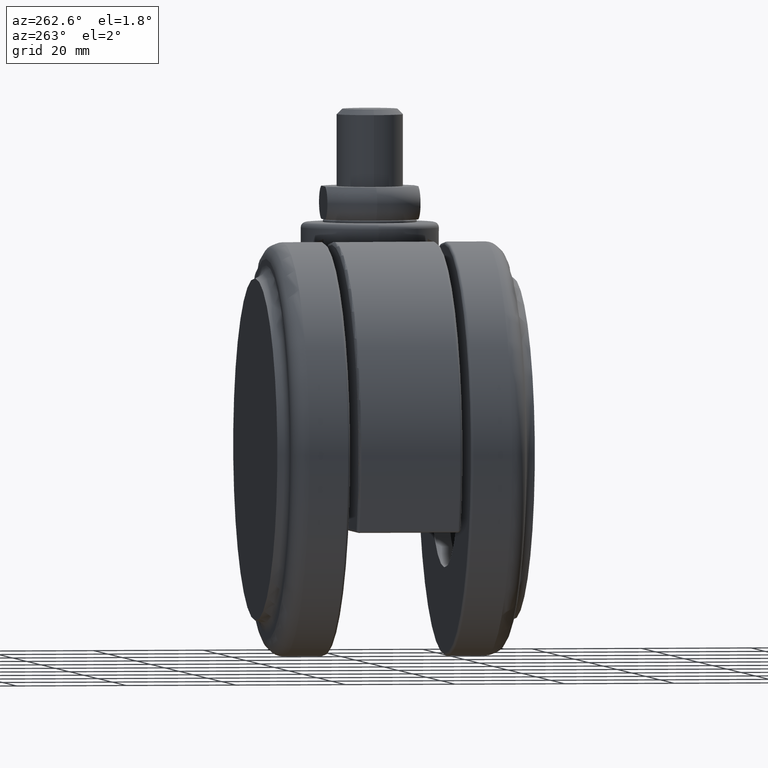
[diagram: clean part render]
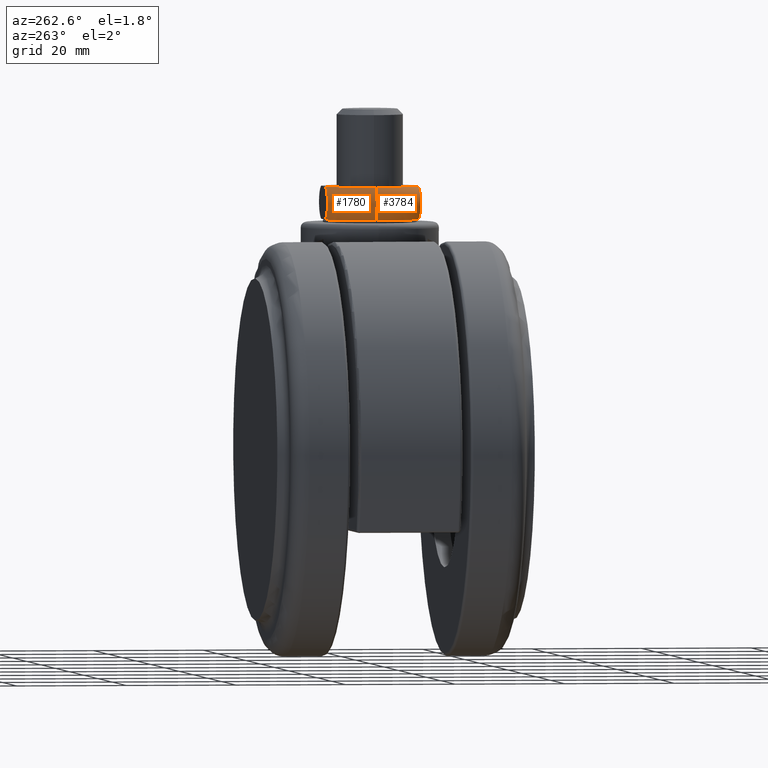
[diagram: same view with one multi-face feature highlighted, each face labeled with its STEP entity id]
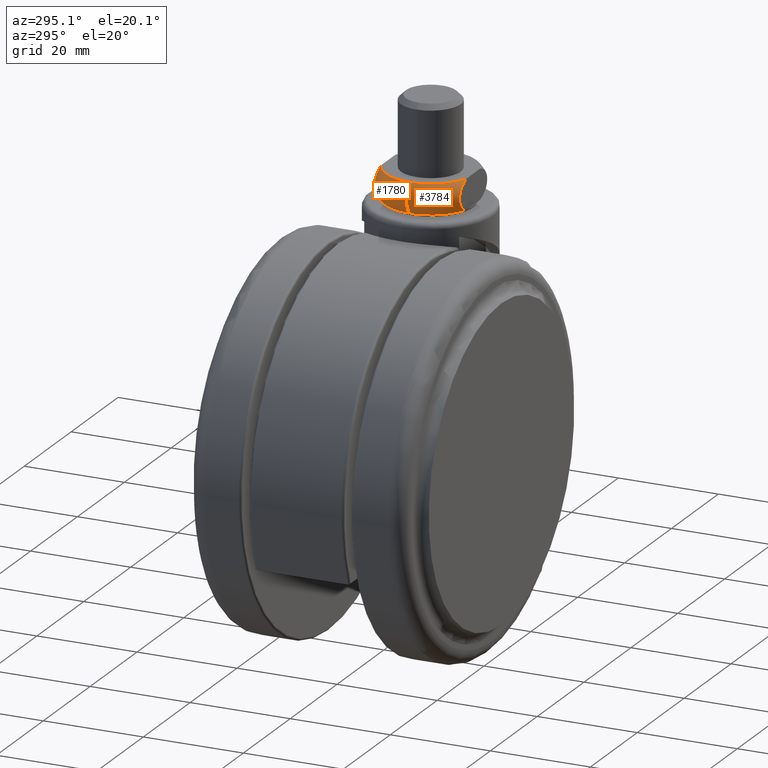
[diagram: same view with one multi-face feature highlighted, each face labeled with its STEP entity id]
A machine part, auxiliary view. The highlighted faces form ONE feature: a constant-radius fillet chain: 2 tangent blend faces with common blend radius 4 mm. The faces share edges in the B-rep.
A second angle (auxiliary view) of the same feature is appended — it is thin or edge-on in the first view.
Their STEP definitions:
[1] entity #1780 (Torus):
#21 = DIRECTION ( 'NONE',  ( -0.0000000000000000000, -1.000000000000000000, -0.0000000000000000000 ) ) ;
#95 = DIRECTION ( 'NONE',  ( 0.0000000000000000000, 0.0000000000000000000, -1.000000000000000000 ) ) ;
#110 = VERTEX_POINT ( 'NONE', #1321 ) ;
#129 = DIRECTION ( 'NONE',  ( -1.000000000000000000, 0.0000000000000000000, 0.0000000000000000000 ) ) ;
#193 = CARTESIAN_POINT ( 'NONE',  ( -4.341128550164994800, 8.500000000000000000, 5.929423039183675700 ) ) ;
#266 = EDGE_CURVE ( 'NONE', #1863, #811, #3368, .T. ) ;
#312 = CARTESIAN_POINT ( 'NONE',  ( -2.958037795423370300, 8.500000000000000000, 0.4999999999998860400 ) ) ;
#348 = CARTESIAN_POINT ( 'NONE',  ( -5.797492333863989000, 8.500000000000001800, 4.243799523248272400 ) ) ;
#363 = CARTESIAN_POINT ( 'NONE',  ( -5.455660565578008400, 8.500000000000001800, 2.086684347546150100 ) ) ;
#412 = CARTESIAN_POINT ( 'NONE',  ( -4.663720708286640500, 8.499999999999998200, 5.722372753358055100 ) ) ;
#425 = CARTESIAN_POINT ( 'NONE',  ( -5.470622542014366400, 8.500000000000000000, 4.927100689193057500 ) ) ;
#477 = CARTESIAN_POINT ( 'NONE',  ( -5.225012333498263200, 8.499999999999998200, 5.224852031213020900 ) ) ;
#484 = CIRCLE ( 'NONE', #1596, 8.999999999999550600 ) ;
#492 = CARTESIAN_POINT ( 'NONE',  ( -5.888808736127421300, 8.499999999999998200, 3.878806464113443200 ) ) ;
#507 = CARTESIAN_POINT ( 'NONE',  ( -4.347601286190057500, 8.499999999999998200, 1.074265343191356000 ) ) ;
#572 = CARTESIAN_POINT ( 'NONE',  ( -5.912739500568307900, 8.500000000000000000, 3.310730941548521300 ) ) ;
#596 = ORIENTED_EDGE ( 'NONE', *, *, #929, .T. ) ;
#639 = CARTESIAN_POINT ( 'NONE',  ( -6.354247999999529400, 0.0000000000000000000, 3.499999999999885000 ) ) ;
#647 = VERTEX_POINT ( 'NONE', #1104 ) ;
#811 = VERTEX_POINT ( 'NONE', #3473 ) ;
#929 = EDGE_CURVE ( 'NONE', #110, #811, #2985, .T. ) ;
#1104 = CARTESIAN_POINT ( 'NONE',  ( -8.999999655531835800, 0.0000000000000000000, 0.4999999999998857600 ) ) ;
#1145 = AXIS2_PLACEMENT_3D ( 'NONE', #1721, #1764, #1785 ) ;
#1155 = CARTESIAN_POINT ( 'NONE',  ( -4.669105729912250700, 8.500000000000000000, 1.281565333654946800 ) ) ;
#1216 = ORIENTED_EDGE ( 'NONE', *, *, #266, .F. ) ;
#1321 = CARTESIAN_POINT ( 'NONE',  ( -8.999999305340566000, 0.0000000000000000000, 6.500000005047589900 ) ) ;
#1370 = EDGE_CURVE ( 'NONE', #647, #1863, #484, .T. ) ;
#1596 = AXIS2_PLACEMENT_3D ( 'NONE', #3134, #95, #129 ) ;
#1721 = CARTESIAN_POINT ( 'NONE',  ( 0.0000000000000000000, 0.0000000000000000000, 6.500000005047589900 ) ) ;
#1763 = AXIS2_PLACEMENT_3D ( 'NONE', #2728, #3543, #2690 ) ;
#1764 = DIRECTION ( 'NONE',  ( 0.0000000000000000000, 0.0000000000000000000, -1.000000000000000000 ) ) ;
#1780 = ADVANCED_FACE ( 'NONE', ( #2977 ), #3079, .T. ) ;
#1785 = DIRECTION ( 'NONE',  ( -1.000000000000000000, 0.0000000000000000000, 0.0000000000000000000 ) ) ;
#1863 = VERTEX_POINT ( 'NONE', #2610 ) ;
#1875 = CARTESIAN_POINT ( 'NONE',  ( -3.317427912265451500, 8.500000000000000000, 0.6041729919679941200 ) ) ;
#1996 = CARTESIAN_POINT ( 'NONE',  ( -5.912733283529219000, 8.500000000000001800, 3.689344073408555000 ) ) ;
#2061 = EDGE_CURVE ( 'NONE', #110, #647, #3734, .T. ) ;
#2076 = CARTESIAN_POINT ( 'NONE',  ( -3.670986050919658400, 8.500000000000000000, 6.264156112284236000 ) ) ;
#2099 = CARTESIAN_POINT ( 'NONE',  ( -3.320124967353686300, 8.499999999999998200, 6.395045239302645800 ) ) ;
#2108 = CARTESIAN_POINT ( 'NONE',  ( -2.958037778009130000, 8.500000000000000000, 6.500000005047589900 ) ) ;
#2147 = CARTESIAN_POINT ( 'NONE',  ( -5.728918002512214600, 8.499999999999998200, 4.423308782760095400 ) ) ;
#2299 = AXIS2_PLACEMENT_3D ( 'NONE', #639, #21, #3143 ) ;
#2346 = CARTESIAN_POINT ( 'NONE',  ( -5.088812398982990500, 8.500000000000000000, 1.654850132406658200 ) ) ;
#2399 = CARTESIAN_POINT ( 'NONE',  ( -5.889424229341530600, 8.500000000000000000, 3.124860285905034300 ) ) ;
#2449 = CARTESIAN_POINT ( 'NONE',  ( -3.674513887033271000, 8.500000000000000000, 0.7371574555428270800 ) ) ;
#2610 = CARTESIAN_POINT ( 'NONE',  ( -2.958037795423370300, 8.500000000000000000, 0.4999999999998860400 ) ) ;
#2621 = EDGE_LOOP ( 'NONE', ( #3525, #596, #1216, #2811 ) ) ;
#2690 = DIRECTION ( 'NONE',  ( -1.000000000000000000, 0.0000000000000000000, 0.0000000000000000000 ) ) ;
#2728 = CARTESIAN_POINT ( 'NONE',  ( 0.0000000000000000000, 0.0000000000000000000, 3.499999999999885000 ) ) ;
#2811 = ORIENTED_EDGE ( 'NONE', *, *, #1370, .F. ) ;
#2977 = FACE_OUTER_BOUND ( 'NONE', #2621, .T. ) ;
#2985 = CIRCLE ( 'NONE', #1145, 8.999999305340569600 ) ;
#3079 = TOROIDAL_SURFACE ( 'NONE', #1763, 6.354247999999529400, 4.000000000000000000 ) ;
#3134 = CARTESIAN_POINT ( 'NONE',  ( 0.0000000000000000000, 0.0000000000000000000, 0.4999999999998860400 ) ) ;
#3143 = DIRECTION ( 'NONE',  ( 0.0000000000000000000, 0.0000000000000000000, -1.000000000000000000 ) ) ;
#3368 = B_SPLINE_CURVE_WITH_KNOTS ( 'NONE', 3,
 ( #312, #1875, #2449, #507, #1155, #2346, #3810, #363, #3378, #3430, #3460, #2399, #572, #1996, #492, #348, #2147, #425, #477, #412, #193, #2076, #2099, #2108 ),
 .UNSPECIFIED., .F., .F.,
 ( 4, 2, 2, 2, 2, 2, 2, 2, 2, 2, 2, 4 ),
 ( 0.01792377335162154100, 0.01904187674131671900, 0.02015998013101189700, 0.02071903182585948400, 0.02127808352070707100, 0.02183713521555466100, 0.02239618691040225200, 0.02295523860524983900, 0.02351429030009743000, 0.02463239368979260700, 0.02575049707948778900, 0.02686860046918296600 ),
 .UNSPECIFIED. ) ;
#3378 = CARTESIAN_POINT ( 'NONE',  ( -5.559260848106908300, 8.500000000000001800, 2.245126578222602600 ) ) ;
#3430 = CARTESIAN_POINT ( 'NONE',  ( -5.730239108562895600, 8.500000000000003600, 2.579940102519258500 ) ) ;
#3460 = CARTESIAN_POINT ( 'NONE',  ( -5.798644974598298400, 8.499999999999998200, 2.759624187087488700 ) ) ;
#3473 = CARTESIAN_POINT ( 'NONE',  ( -2.958037778009130000, 8.500000000000000000, 6.500000005047589900 ) ) ;
#3525 = ORIENTED_EDGE ( 'NONE', *, *, #2061, .F. ) ;
#3543 = DIRECTION ( 'NONE',  ( 0.0000000000000000000, 0.0000000000000000000, -1.000000000000000000 ) ) ;
#3734 = CIRCLE ( 'NONE', #2299, 4.000000000000000000 ) ;
#3810 = CARTESIAN_POINT ( 'NONE',  ( -5.219051971395940900, 8.500000000000001800, 1.789981360858463400 ) ) ;
[2] entity #3784 (Torus):
#21 = DIRECTION ( 'NONE',  ( -0.0000000000000000000, -1.000000000000000000, -0.0000000000000000000 ) ) ;
#48 = CARTESIAN_POINT ( 'NONE',  ( -5.798644968921637500, -8.499999999999911200, 4.240375829911742200 ) ) ;
#70 = ORIENTED_EDGE ( 'NONE', *, *, #3163, .T. ) ;
#103 = CARTESIAN_POINT ( 'NONE',  ( -5.730239101625271800, -8.499999999999913000, 4.420059913849627300 ) ) ;
#110 = VERTEX_POINT ( 'NONE', #1321 ) ;
#138 = CARTESIAN_POINT ( 'NONE',  ( -5.559260838959795100, -8.499999999999911200, 4.754873436906065900 ) ) ;
#264 = EDGE_LOOP ( 'NONE', ( #70, #2675, #1959, #1687 ) ) ;
#296 = EDGE_CURVE ( 'NONE', #435, #2056, #350, .T. ) ;
#350 = B_SPLINE_CURVE_WITH_KNOTS ( 'NONE', 3,
 ( #3949, #848, #791, #783, #765, #701, #542, #361, #138, #103, #48, #3862, #3836, #3796, #3778, #3821, #3807, #3735, #3725, #3710, #3687, #3673, #3627, #3614 ),
 .UNSPECIFIED., .F., .F.,
 ( 4, 2, 2, 2, 2, 2, 2, 2, 2, 2, 2, 4 ),
 ( 0.01792377333432737900, 0.01904187672394381700, 0.02015998011356025200, 0.02071903180836847200, 0.02127808350317669100, 0.02183713519798491400, 0.02239618689279313300, 0.02295523858760135200, 0.02351429028240957200, 0.02463239367202601000, 0.02575049706164244900, 0.02686860045125888700 ),
 .UNSPECIFIED. ) ;
#361 = CARTESIAN_POINT ( 'NONE',  ( -5.455660555219791900, -8.499999999999913000, 4.913315667224887700 ) ) ;
#365 = CARTESIAN_POINT ( 'NONE',  ( -2.958037795423865000, -8.499999999999911200, 0.4999999999998860400 ) ) ;
#435 = VERTEX_POINT ( 'NONE', #1333 ) ;
#476 = DIRECTION ( 'NONE',  ( 0.0000000000000000000, 0.0000000000000000000, -1.000000000000000000 ) ) ;
#485 = DIRECTION ( 'NONE',  ( -1.000000000000000000, 0.0000000000000000000, 0.0000000000000000000 ) ) ;
#527 = CARTESIAN_POINT ( 'NONE',  ( 0.0000000000000000000, 0.0000000000000000000, 0.4999999999998860400 ) ) ;
#538 = DIRECTION ( 'NONE',  ( -1.000000000000000000, 0.0000000000000000000, 0.0000000000000000000 ) ) ;
#542 = CARTESIAN_POINT ( 'NONE',  ( -5.219051959545210700, -8.499999999999913000, 5.210018652220026200 ) ) ;
#639 = CARTESIAN_POINT ( 'NONE',  ( -6.354247999999529400, 0.0000000000000000000, 3.499999999999885000 ) ) ;
#647 = VERTEX_POINT ( 'NONE', #1104 ) ;
#701 = CARTESIAN_POINT ( 'NONE',  ( -5.088812386480751300, -8.499999999999911200, 5.345149879930501900 ) ) ;
#754 = AXIS2_PLACEMENT_3D ( 'NONE', #2828, #1040, #3140 ) ;
#765 = CARTESIAN_POINT ( 'NONE',  ( -4.669105715610133000, -8.499999999999913000, 5.718434676629529500 ) ) ;
#783 = CARTESIAN_POINT ( 'NONE',  ( -4.347601271038438000, -8.499999999999909400, 5.925734665817342000 ) ) ;
#791 = CARTESIAN_POINT ( 'NONE',  ( -3.674513870808910900, -8.499999999999911200, 6.262842551162494300 ) ) ;
#848 = CARTESIAN_POINT ( 'NONE',  ( -3.317427895695561200, -8.499999999999911200, 6.395827013742356300 ) ) ;
#1040 = DIRECTION ( 'NONE',  ( 0.0000000000000000000, 0.0000000000000000000, -1.000000000000000000 ) ) ;
#1039 = AXIS2_PLACEMENT_3D ( 'NONE', #3199, #1975, #485 ) ;
#1104 = CARTESIAN_POINT ( 'NONE',  ( -8.999999655531835800, 0.0000000000000000000, 0.4999999999998857600 ) ) ;
#1193 = EDGE_CURVE ( 'NONE', #2056, #647, #3458, .T. ) ;
#1321 = CARTESIAN_POINT ( 'NONE',  ( -8.999999305340566000, 0.0000000000000000000, 6.500000005047589900 ) ) ;
#1333 = CARTESIAN_POINT ( 'NONE',  ( -2.958037778009625200, -8.499999999999911200, 6.499999999999619900 ) ) ;
#1687 = ORIENTED_EDGE ( 'NONE', *, *, #296, .F. ) ;
#1959 = ORIENTED_EDGE ( 'NONE', *, *, #1193, .F. ) ;
#1975 = DIRECTION ( 'NONE',  ( 0.0000000000000000000, 0.0000000000000000000, -1.000000000000000000 ) ) ;
#2056 = VERTEX_POINT ( 'NONE', #365 ) ;
#2061 = EDGE_CURVE ( 'NONE', #110, #647, #3734, .T. ) ;
#2062 = FACE_OUTER_BOUND ( 'NONE', #264, .T. ) ;
#2299 = AXIS2_PLACEMENT_3D ( 'NONE', #639, #21, #3143 ) ;
#2481 = AXIS2_PLACEMENT_3D ( 'NONE', #527, #476, #538 ) ;
#2675 = ORIENTED_EDGE ( 'NONE', *, *, #2061, .T. ) ;
#2828 = CARTESIAN_POINT ( 'NONE',  ( 0.0000000000000000000, 0.0000000000000000000, 6.500000005047589900 ) ) ;
#3075 = CIRCLE ( 'NONE', #754, 8.999999305340569600 ) ;
#3140 = DIRECTION ( 'NONE',  ( -1.000000000000000000, 0.0000000000000000000, 0.0000000000000000000 ) ) ;
#3143 = DIRECTION ( 'NONE',  ( 0.0000000000000000000, 0.0000000000000000000, -1.000000000000000000 ) ) ;
#3163 = EDGE_CURVE ( 'NONE', #435, #110, #3075, .T. ) ;
#3199 = CARTESIAN_POINT ( 'NONE',  ( 0.0000000000000000000, 0.0000000000000000000, 3.499999999999885000 ) ) ;
#3458 = CIRCLE ( 'NONE', #2481, 8.999999999999550600 ) ;
#3496 = TOROIDAL_SURFACE ( 'NONE', #1039, 6.354247999999529400, 4.000000000000000000 ) ;
#3614 = CARTESIAN_POINT ( 'NONE',  ( -2.958037795423865000, -8.499999999999911200, 0.4999999999998860400 ) ) ;
#3627 = CARTESIAN_POINT ( 'NONE',  ( -3.320124984375679900, -8.499999999999913000, 0.6049547665858484600 ) ) ;
#3673 = CARTESIAN_POINT ( 'NONE',  ( -3.670986067500816600, -8.499999999999911200, 0.7358438945563693400 ) ) ;
#3687 = CARTESIAN_POINT ( 'NONE',  ( -4.341128565673017200, -8.499999999999911200, 1.070576970003465700 ) ) ;
#3710 = CARTESIAN_POINT ( 'NONE',  ( -4.663720722923060600, -8.499999999999911200, 1.277627257136406200 ) ) ;
#3725 = CARTESIAN_POINT ( 'NONE',  ( -5.225012345620208400, -8.499999999999911200, 1.775147982010003800 ) ) ;
#3734 = CIRCLE ( 'NONE', #2299, 4.000000000000000000 ) ;
#3735 = CARTESIAN_POINT ( 'NONE',  ( -5.470622552425081300, -8.499999999999909400, 2.072899325473769300 ) ) ;
#3778 = CARTESIAN_POINT ( 'NONE',  ( -5.888808739066426800, -8.499999999999911200, 3.121193553457322100 ) ) ;
#3784 = ADVANCED_FACE ( 'NONE', ( #2062 ), #3496, .T. ) ;
#3796 = CARTESIAN_POINT ( 'NONE',  ( -5.912733285012261100, -8.499999999999909400, 3.310655944712288500 ) ) ;
#3807 = CARTESIAN_POINT ( 'NONE',  ( -5.728918009566011300, -8.499999999999909400, 2.576691233816597000 ) ) ;
#3821 = CARTESIAN_POINT ( 'NONE',  ( -5.797492339573863300, -8.499999999999911200, 2.756200493749179100 ) ) ;
#3836 = CARTESIAN_POINT ( 'NONE',  ( -5.912739499086114000, -8.499999999999911200, 3.689269076108742800 ) ) ;
#3862 = CARTESIAN_POINT ( 'NONE',  ( -5.889424226459081700, -8.499999999999911200, 3.875139731532579700 ) ) ;
#3949 = CARTESIAN_POINT ( 'NONE',  ( -2.958037778009625200, -8.499999999999911200, 6.499999999999619900 ) ) ;